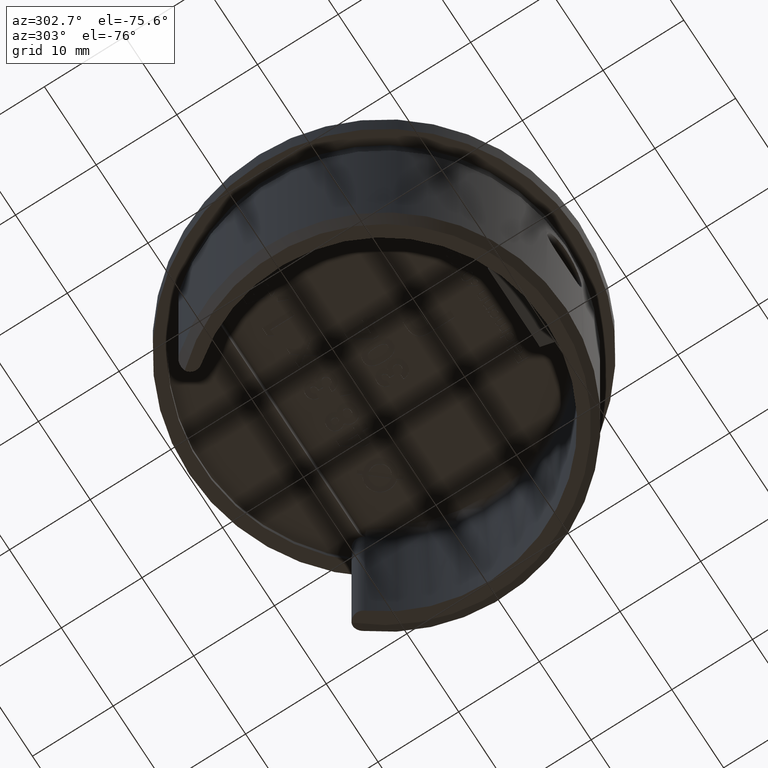
[diagram: clean part render]
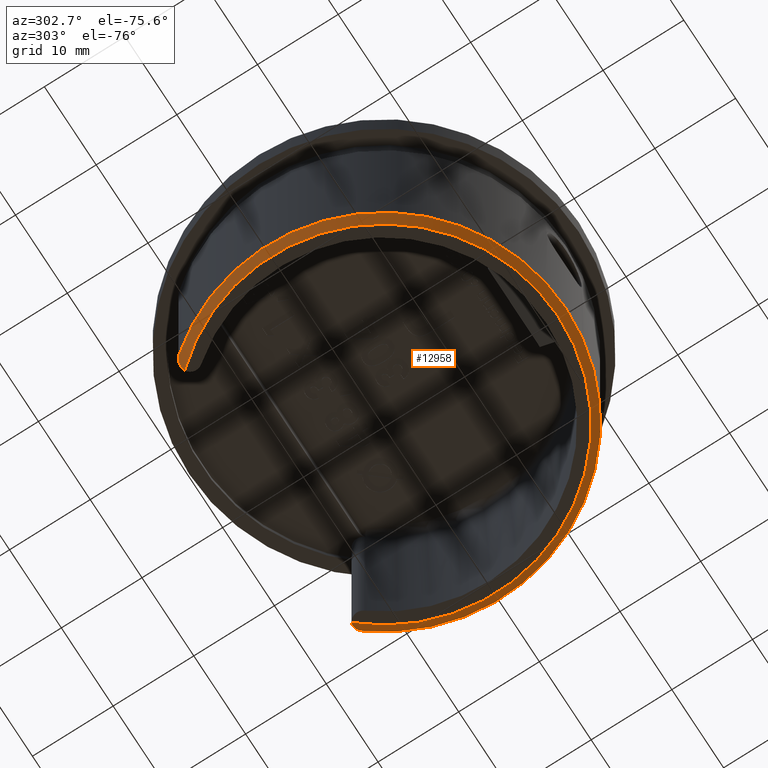
[diagram: same view with one face highlighted and labeled with its STEP entity id]
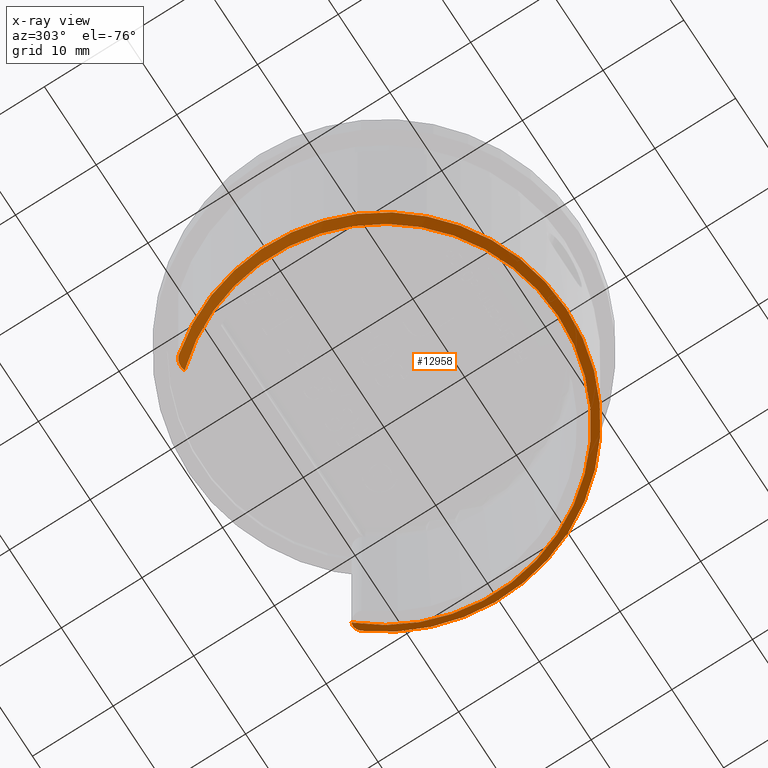
[diagram: x-ray of the same camera — body ghosted, the highlighted face saturated]
A machine part, auxiliary view. The second image highlights one B-rep face of the part: STEP entity #12958.
The next image is the same camera in x-ray: the body ghosted, the highlighted face saturated — about 0% of this face is hidden behind the body in this view.
In plain terms, the highlighted conical surface has half-angle 45 deg.
Its self-contained STEP definition (entity closure, byte-faithful):
#15 = B_SPLINE_CURVE_WITH_KNOTS ( 'NONE', 3,
 ( #11640, #18806, #9607, #116, #7694, #19111, #20861, #2036, #9758, #11484, #7861, #13358, #15251, #3912 ),
 .UNSPECIFIED., .F., .F.,
 ( 4, 2, 2, 2, 2, 2, 4 ),
 ( 8.673617379884035500E-018, 0.0002552712531775052200, 0.0005105425063550017700, 0.0007658137595324982600, 0.001021085012709994900, 0.001531627519065002800, 0.002042170025420011000 ),
 .UNSPECIFIED. ) ;
#116 = CARTESIAN_POINT ( 'NONE',  ( 17.44069636164228900, 14.30805477766315000, -29.04137531220755600 ) ) ;
#1077 = B_SPLINE_CURVE_WITH_KNOTS ( 'NONE', 3,
 ( #12597, #16070, #14393, #18031, #14312, #1345, #14473, #23808, #16305, #23964, #12510, #17954 ),
 .UNSPECIFIED., .F., .F.,
 ( 4, 2, 2, 2, 2, 4 ),
 ( 0.0000000000000000000, 0.0005099128942726129400, 0.001019825788545225900, 0.001529738682817838800, 0.001784695129954146000, 0.002039651577090453100 ),
 .UNSPECIFIED. ) ;
#1345 = CARTESIAN_POINT ( 'NONE',  ( -17.01089881589856000, 14.50986618970667600, -29.24164561079051700 ) ) ;
#1614 = CARTESIAN_POINT ( 'NONE',  ( 17.68350877192982300, 14.07314881300849400, -28.99999999999997900 ) ) ;
#2036 = CARTESIAN_POINT ( 'NONE',  ( 17.01332675254221300, 14.50328802021821600, -29.24391256848381100 ) ) ;
#2453 = CIRCLE ( 'NONE', #12409, 21.60000000000000900 ) ;
#3311 = DIRECTION ( 'NONE',  ( 1.000000000000000000, 0.0000000000000000000, 0.0000000000000000000 ) ) ;
#3912 = CARTESIAN_POINT ( 'NONE',  ( 16.12103601426096600, 14.37609814333852000, -30.00000000000000000 ) ) ;
#6206 = EDGE_CURVE ( 'NONE', #19265, #22804, #6678, .T. ) ;
#6678 = CIRCLE ( 'NONE', #8487, 22.59999999999999800 ) ;
#6976 = CARTESIAN_POINT ( 'NONE',  ( -16.12103601426096900, 14.37609814333851900, -30.00000000000000000 ) ) ;
#7112 = CARTESIAN_POINT ( 'NONE',  ( 16.12103601426096600, 14.37609814333852000, -30.00000000000000000 ) ) ;
#7694 = CARTESIAN_POINT ( 'NONE',  ( 17.37099792611409300, 14.35421597024988900, -29.06581219379228600 ) ) ;
#7861 = CARTESIAN_POINT ( 'NONE',  ( 16.59631005380261500, 14.53527597581096700, -29.53854499738572800 ) ) ;
#8028 = VERTEX_POINT ( 'NONE', #7112 ) ;
#8147 = DIRECTION ( 'NONE',  ( -1.000000000000000000, 0.0000000000000000000, 0.0000000000000000000 ) ) ;
#8306 = FACE_OUTER_BOUND ( 'NONE', #16059, .T. ) ;
#8487 = AXIS2_PLACEMENT_3D ( 'NONE', #14075, #17886, #15992 ) ;
#8601 = VERTEX_POINT ( 'NONE', #6976 ) ;
#9607 = CARTESIAN_POINT ( 'NONE',  ( 17.57006978103320400, 14.20113421703854700, -29.00856817583742900 ) ) ;
#9758 = CARTESIAN_POINT ( 'NONE',  ( 16.94229471166695700, 14.51798815558455600, -29.28833060341750300 ) ) ;
#9764 = AXIS2_PLACEMENT_3D ( 'NONE', #22146, #14567, #3311 ) ;
#10841 = EDGE_CURVE ( 'NONE', #8028, #8601, #2453, .T. ) ;
#11484 = CARTESIAN_POINT ( 'NONE',  ( 16.73127908130475900, 14.54348662530761900, -29.43160476633651300 ) ) ;
#11640 = CARTESIAN_POINT ( 'NONE',  ( 17.68350877192982300, 14.07314881300849400, -28.99999999999997900 ) ) ;
#11758 = DIRECTION ( 'NONE',  ( 0.0000000000000000000, 0.0000000000000000000, -1.000000000000000000 ) ) ;
#12409 = AXIS2_PLACEMENT_3D ( 'NONE', #21058, #11758, #8147 ) ;
#12510 = CARTESIAN_POINT ( 'NONE',  ( -17.62964925179447900, 14.14082558594826000, -28.99999999999998900 ) ) ;
#12597 = CARTESIAN_POINT ( 'NONE',  ( -16.12103601426096900, 14.37609814333851900, -30.00000000000000000 ) ) ;
#12958 = ADVANCED_FACE ( 'NONE', ( #8306 ), #23905, .T. ) ;
#13147 = ORIENTED_EDGE ( 'NONE', *, *, #10841, .F. ) ;
#13358 = CARTESIAN_POINT ( 'NONE',  ( 16.34561449989849500, 14.48213200029669200, -29.76179260125165300 ) ) ;
#14075 = CARTESIAN_POINT ( 'NONE',  ( 0.0000000000000000000, 0.0000000000000000000, -29.00000000000000700 ) ) ;
#14312 = CARTESIAN_POINT ( 'NONE',  ( -16.73013024067433500, 14.54345577417076600, -29.43249045673516000 ) ) ;
#14393 = CARTESIAN_POINT ( 'NONE',  ( -16.34350168928180500, 14.48150499974402400, -29.76379013010883800 ) ) ;
#14473 = CARTESIAN_POINT ( 'NONE',  ( -17.15682819446038500, 14.46800702516291400, -29.15768128834054800 ) ) ;
#14567 = DIRECTION ( 'NONE',  ( 0.0000000000000000000, 0.0000000000000000000, 1.000000000000000000 ) ) ;
#14918 = EDGE_CURVE ( 'NONE', #22804, #8028, #15, .T. ) ;
#15251 = CARTESIAN_POINT ( 'NONE',  ( 16.22785012799576500, 14.43662926394026500, -29.87999280070153000 ) ) ;
#15992 = DIRECTION ( 'NONE',  ( -1.000000000000000000, 0.0000000000000000000, 0.0000000000000000000 ) ) ;
#16059 = EDGE_LOOP ( 'NONE', ( #23162, #21186, #21381, #13147 ) ) ;
#16070 = CARTESIAN_POINT ( 'NONE',  ( -16.22780254939223400, 14.43660230134058300, -29.88004625594969700 ) ) ;
#16305 = CARTESIAN_POINT ( 'NONE',  ( -17.43902514740877800, 14.30925626412569300, -29.04190534164776200 ) ) ;
#17886 = DIRECTION ( 'NONE',  ( 0.0000000000000000000, 0.0000000000000000000, 1.000000000000000000 ) ) ;
#17954 = CARTESIAN_POINT ( 'NONE',  ( -17.68350877192980200, 14.07314881300847300, -29.00000000000000700 ) ) ;
#18031 = CARTESIAN_POINT ( 'NONE',  ( -16.59518045491538300, 14.53521333813053800, -29.53943636094178500 ) ) ;
#18806 = CARTESIAN_POINT ( 'NONE',  ( 17.62961248237327500, 14.14087178828648600, -29.00000000000000400 ) ) ;
#19111 = CARTESIAN_POINT ( 'NONE',  ( 17.23000589257649300, 14.42924954036703300, -29.12621793350736300 ) ) ;
#19265 = VERTEX_POINT ( 'NONE', #20869 ) ;
#19699 = EDGE_CURVE ( 'NONE', #8601, #19265, #1077, .T. ) ;
#20861 = CARTESIAN_POINT ( 'NONE',  ( 17.15696286216723700, 14.45910711382918600, -29.16290687628198700 ) ) ;
#20869 = CARTESIAN_POINT ( 'NONE',  ( -17.68350877192980200, 14.07314881300847300, -29.00000000000000700 ) ) ;
#21058 = CARTESIAN_POINT ( 'NONE',  ( 0.0000000000000000000, 0.0000000000000000000, -30.00000000000000000 ) ) ;
#21186 = ORIENTED_EDGE ( 'NONE', *, *, #6206, .F. ) ;
#21381 = ORIENTED_EDGE ( 'NONE', *, *, #19699, .F. ) ;
#22146 = CARTESIAN_POINT ( 'NONE',  ( 0.0000000000000000000, 0.0000000000000000000, -30.00000000000000000 ) ) ;
#22804 = VERTEX_POINT ( 'NONE', #1614 ) ;
#23162 = ORIENTED_EDGE ( 'NONE', *, *, #14918, .F. ) ;
#23808 = CARTESIAN_POINT ( 'NONE',  ( -17.37069073248926200, 14.35447160257541600, -29.06588866721701700 ) ) ;
#23905 = CONICAL_SURFACE ( 'NONE', #9764, 21.60000000000000900, 0.7853981633974482800 ) ;
#23964 = CARTESIAN_POINT ( 'NONE',  ( -17.56866064725289100, 14.20247425943755100, -29.00882177222439800 ) ) ;